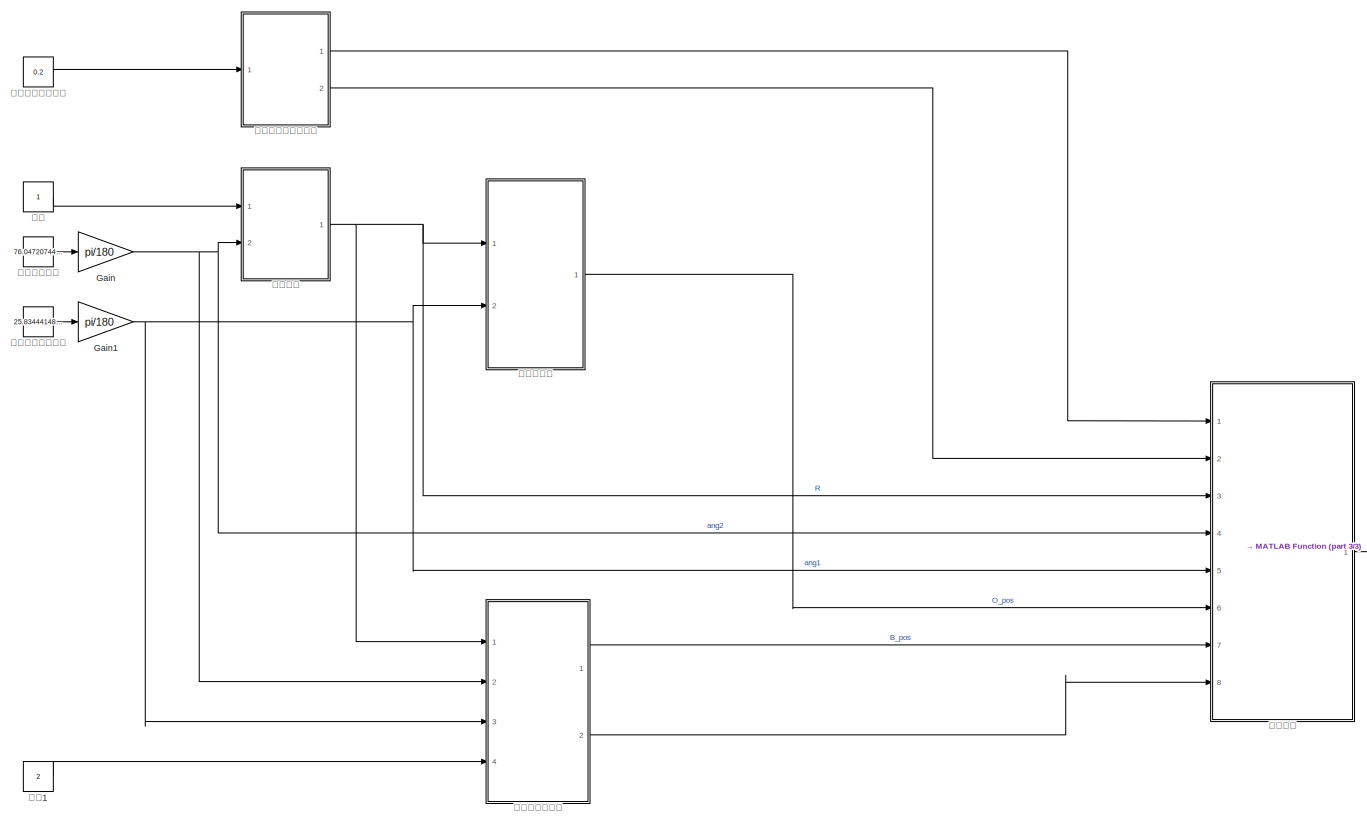
[diagram: root canvas - part 1/3, center side, full height]
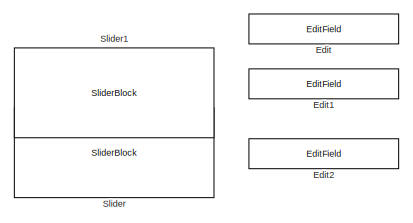
[diagram: root canvas - part 2/3, middle left region]
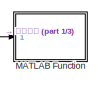
[diagram: root canvas - part 3/3, bottom right region]
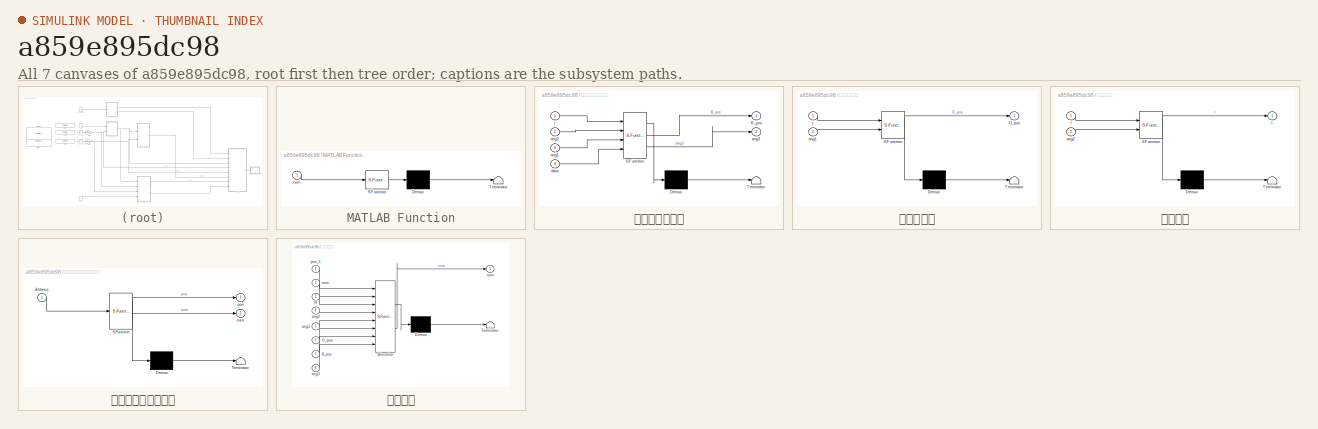
[diagram: thumbnail index - all 7 canvases of the model, root first then tree order]
MODEL slx_a859e895dc98
KIND model
CONFIG AbsTol = auto
CONFIG EnableMultiTasking = off
CONFIG FixedStep = auto
CONFIG MaxStep = auto
CONFIG MinStep = auto
CONFIG RelTol = 1e-3
CONFIG SampleTimeConstraint = Unconstrained
CONFIG Solver = VariableStepAuto
CONFIG SolverName = VariableStepAuto
CONFIG StartTime = 0.0
CONFIG StopTime = inf
BLOCK [EditField] Edit
  Alignment = Center
  LabelPosition = Hide
  ShowInitialText = on
BLOCK [EditField] Edit1
  Alignment = Center
  LabelPosition = Hide
  ShowInitialText = on
BLOCK [EditField] Edit2
  Alignment = Center
  LabelPosition = Hide
  ShowInitialText = on
BLOCK [Gain] Gain
  Gain = pi/180
BLOCK [Gain] Gain1
  Gain = pi/180
BLOCK [SubSystem] MATLAB Function
  ErrorFcn = Stateflow.Translate.translate
  PermitHierarchicalResolution = ExplicitOnly
  Ports = [1]
  RequestExecContextInheritance = off
  SFBlockType = MATLAB Function
  TreatAsAtomicUnit = on
BLOCK [Demux] MATLAB Function/ Demux 
  Outputs = 1
  Ports = [1, 1]
BLOCK [S-Function] MATLAB Function/ SFunction 
  EnableBusSupport = on
  FunctionName = sf_sfun
  PortCounts = [1 1]
  Ports = [1, 1]
  SFcnIsStateOwnerBlock = off
  SFunctionDeploymentMode = off
  Tag = Stateflow S-Function 4
BLOCK [Terminator] MATLAB Function/ Terminator 
BLOCK [Inport] MATLAB Function/num
BLOCK [SliderBlock] Slider
BLOCK [SliderBlock] Slider1
BLOCK [Constant] 圆弧弯曲角度
  Value = 76.0472074468085
BLOCK [Constant] 在水平面投影角度
  Value = 25.8344414893617
BLOCK [Constant] 拉绳与中心体距离
  Value = 0.2
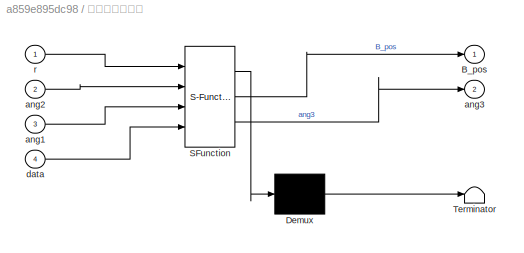
BLOCK [SubSystem] 求圆弧末端坐标
  ErrorFcn = Stateflow.Translate.translate
  PermitHierarchicalResolution = ExplicitOnly
  Ports = [4, 2]
  RequestExecContextInheritance = off
  SFBlockType = MATLAB Function
  TreatAsAtomicUnit = on
BLOCK [Demux] 求圆弧末端坐标/ Demux 
  Outputs = 1
  Ports = [1, 1]
BLOCK [S-Function] 求圆弧末端坐标/ SFunction 
  EnableBusSupport = on
  FunctionName = sf_sfun
  PortCounts = [4 3]
  Ports = [4, 3]
  SFcnIsStateOwnerBlock = off
  SFunctionDeploymentMode = off
  Tag = Stateflow S-Function 3
BLOCK [Terminator] 求圆弧末端坐标/ Terminator 
BLOCK [Outport] 求圆弧末端坐标/B_pos
BLOCK [Inport] 求圆弧末端坐标/ang1
  Port = 3
BLOCK [Inport] 求圆弧末端坐标/ang2
  Port = 2
BLOCK [Outport] 求圆弧末端坐标/ang3
  Port = 2
BLOCK [Inport] 求圆弧末端坐标/data
  Port = 4
BLOCK [Inport] 求圆弧末端坐标/r
BLOCK [SubSystem] 求圆心坐标
  ErrorFcn = Stateflow.Translate.translate
  PermitHierarchicalResolution = ExplicitOnly
  Ports = [2, 1]
  RequestExecContextInheritance = off
  SFBlockType = MATLAB Function
  TreatAsAtomicUnit = on
BLOCK [Demux] 求圆心坐标/ Demux 
  Outputs = 1
  Ports = [1, 1]
BLOCK [S-Function] 求圆心坐标/ SFunction 
  EnableBusSupport = on
  FunctionName = sf_sfun
  PortCounts = [2 2]
  Ports = [2, 2]
  SFcnIsStateOwnerBlock = off
  SFunctionDeploymentMode = off
  Tag = Stateflow S-Function 1
BLOCK [Terminator] 求圆心坐标/ Terminator 
BLOCK [Outport] 求圆心坐标/O_pos
BLOCK [Inport] 求圆心坐标/ang1
  Port = 2
BLOCK [Inport] 求圆心坐标/r
BLOCK [SubSystem] 求圆直径
  ErrorFcn = Stateflow.Translate.translate
  PermitHierarchicalResolution = ExplicitOnly
  Ports = [2, 1]
  RequestExecContextInheritance = off
  SFBlockType = MATLAB Function
  TreatAsAtomicUnit = on
BLOCK [Demux] 求圆直径/ Demux 
  Outputs = 1
  Ports = [1, 1]
BLOCK [S-Function] 求圆直径/ SFunction 
  EnableBusSupport = on
  FunctionName = sf_sfun
  PortCounts = [2 2]
  Ports = [2, 2]
  SFcnIsStateOwnerBlock = off
  SFunctionDeploymentMode = off
  Tag = Stateflow S-Function 2
BLOCK [Terminator] 求圆直径/ Terminator 
BLOCK [Inport] 求圆直径/ang2
  Port = 2
BLOCK [Inport] 求圆直径/l
BLOCK [Outport] 求圆直径/r
BLOCK [SubSystem] 求每个拉绳孔的位置
  ErrorFcn = Stateflow.Translate.translate
  PermitHierarchicalResolution = ExplicitOnly
  Ports = [1, 2]
  RequestExecContextInheritance = off
  SFBlockType = MATLAB Function
  TreatAsAtomicUnit = on
BLOCK [Demux] 求每个拉绳孔的位置/ Demux 
  Outputs = 1
  Ports = [1, 1]
BLOCK [S-Function] 求每个拉绳孔的位置/ SFunction 
  EnableBusSupport = on
  FunctionName = sf_sfun
  PortCounts = [1 3]
  Ports = [1, 3]
  SFcnIsStateOwnerBlock = off
  SFunctionDeploymentMode = off
  Tag = Stateflow S-Function 5
BLOCK [Terminator] 求每个拉绳孔的位置/ Terminator 
BLOCK [Inport] 求每个拉绳孔的位置/distance
BLOCK [Outport] 求每个拉绳孔的位置/num
  Port = 2
BLOCK [Outport] 求每个拉绳孔的位置/pos
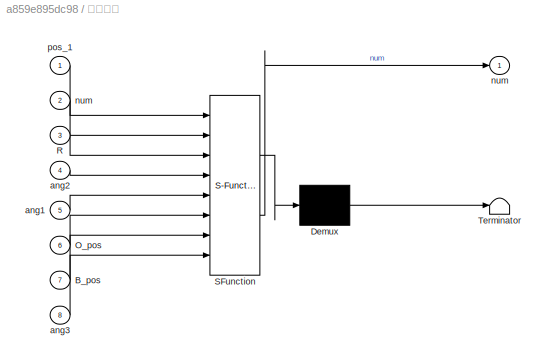
BLOCK [SubSystem] 绘制图形
  ErrorFcn = Stateflow.Translate.translate
  PermitHierarchicalResolution = ExplicitOnly
  Ports = [8, 1]
  RequestExecContextInheritance = off
  SFBlockType = MATLAB Function
  TreatAsAtomicUnit = on
  VariantControl = Choice
BLOCK [Demux] 绘制图形/ Demux 
  Outputs = 1
  Ports = [1, 1]
BLOCK [S-Function] 绘制图形/ SFunction 
  EnableBusSupport = on
  FunctionName = sf_sfun
  PortCounts = [8 2]
  Ports = [8, 2]
  SFcnIsStateOwnerBlock = off
  SFunctionDeploymentMode = off
  Tag = Stateflow S-Function 6
BLOCK [Terminator] 绘制图形/ Terminator 
BLOCK [Inport] 绘制图形/B_pos
  Port = 7
BLOCK [Inport] 绘制图形/O_pos
  Port = 6
BLOCK [Inport] 绘制图形/R
  Port = 3
BLOCK [Inport] 绘制图形/ang1
  Port = 5
BLOCK [Inport] 绘制图形/ang2
  Port = 4
BLOCK [Inport] 绘制图形/ang3
  Port = 8
BLOCK [Outport] 绘制图形/num
BLOCK [Inport] 绘制图形/num 
  Port = 2
BLOCK [Inport] 绘制图形/pos_1
BLOCK [Constant] 长度
BLOCK [Constant] 长度1
  Value = 2
NET Gain1:1 -> 求圆弧末端坐标:3, 求圆心坐标:2, 绘制图形:5
NET Gain:1 -> 求圆弧末端坐标:2, 求圆直径:2, 绘制图形:4
LINE 圆弧弯曲角度:1 -> Gain:1
LINE 在水平面投影角度:1 -> Gain1:1
LINE 拉绳与中心体距离:1 -> 求每个拉绳孔的位置:1
LINE 求圆弧末端坐标:1 -> 绘制图形:7
LINE 求圆弧末端坐标:2 -> 绘制图形:8
LINE 求圆心坐标:1 -> 绘制图形:6
NET 求圆直径:1 -> 求圆弧末端坐标:1, 求圆心坐标:1, 绘制图形:3
LINE 求每个拉绳孔的位置:1 -> 绘制图形:1
LINE 求每个拉绳孔的位置:2 -> 绘制图形:2
LINE 绘制图形:1 -> MATLAB Function:1
LINE 长度1:1 -> 求圆弧末端坐标:4
LINE 长度:1 -> 求圆直径:1
note: NET lines group one-source signal fan-out (src -> all destinations, sorted); 1:1 wires keep LINE
CHART 求圆心坐标 states=1 transitions=1
  STATE_LABEL 'eML_blk_kernel()'
  STATE_LABEL 'SCRIPT:\nfunction O_pos = fcn(r,ang1)\n    %计算X坐标\n    x = r * cos(ang1);\n    %计算Y坐标\n    y = r * sin(ang1);\n    \n    O_pos = [x,y,0];\nend\n\n'
CHART 求圆直径 states=1 transitions=1
  STATE_LABEL 'eML_blk_kernel()'
  STATE_LABEL 'SCRIPT:\nfunction r = fcn(l,ang2)\n    %将ang2转换为弧度制\n    double ang2_degree;\n    ang2_degree = ang2;\n    %计算半径\n    r = l/ang2_degree;\nend\n'
CHART 求圆弧末端坐标 states=1 transitions=1
  STATE_LABEL 'eML_blk_kernel()'
  STATE_LABEL 'SCRIPT:\nfunction [B_pos,ang3]  = fcn(r,ang2,ang1, data)\ndouble L;\ndouble Lob;\n%定义盘片坐标数组\nnum = 3;\nB_pos = zeros(num,3);\npos = zeros(1,3);\n%计算每个盘片的坐标\nfor index = 1:1:data\n     %B点Z轴坐标\n     z = r * sin(ang2 * index/data);\n     %B点X轴坐标\n     x = r - r * cos(ang2 * index/data);\n     %B点整体坐标\n     pos =[x 0 z];\n     %计算弦长\n     L = 2 * r * sin(ang2 * index /data  / 2);\n     %B点投影于XOY平面AB的长度\n     Lob = L * ...<+223ch>'
CHART MATLAB Function states=1 transitions=1
  STATE_LABEL 'eML_blk_kernel()'
  STATE_LABEL "SCRIPT:\nfunction fcn(num)\n    axis equal;\n    xlabel('x');\n    ylabel('y');\n    zlabel('z');\n    xlim([-1 1]); \n    ylim([-1 1]);\n    zlim([0 2]);\n    grid on;\nend\n"
CHART 求每个拉绳孔的位置 states=1 transitions=1
  STATE_LABEL 'eML_blk_kernel()'
  STATE_LABEL 'SCRIPT:\nfunction [pos,num]  = fcn(distance)\n    %线数目\n    num = 3;\n    %定义pos\n    pos = zeros (num,3);\n    %计算间隔角度\n    degree_1 = 2*pi/num;\n    %使用三角函数计算坐标\n    for index = 1:num\n        pos(index,1) = distance * cos(degree_1*index);\n        pos(index,2) = distance * sin(degree_1*index);\n        pos(index,3) = 0;\n    end\nend\n'
CHART 绘制图形 states=1 transitions=1
  STATE_LABEL 'eML_blk_kernel()'
  STATE_LABEL "SCRIPT:\nfunction num = fcn(pos_1, num, R, ang2,ang1,O_pos,B_pos, ang3)\n    %清除\n    clf;\n    %表格配置，轴对齐\n    %axis manual;\n    \n    %绘制A点\n    plot3(0,0,0,'o');\n    hold on;\n    %绘制B点\n    plot3(B_pos(1),B_pos(2),B_pos(3),'o','color','r');\n    text(B_pos(1),B_pos(2),B_pos(3),'B');\n    hold on;\n    %绘制O点-圆心\n    plot3(O_pos(1),O_pos(2),O_pos(3),'o','color','g');\n    text(O_pos(1),O_pos(2),O_pos(3),'O');\n...<+1364ch>"
CHART  states=0 transitions=0
CHART  states=0 transitions=0
CHART  states=0 transitions=0
CHART  states=0 transitions=0
CHART  states=0 transitions=0
CHART  states=0 transitions=0
